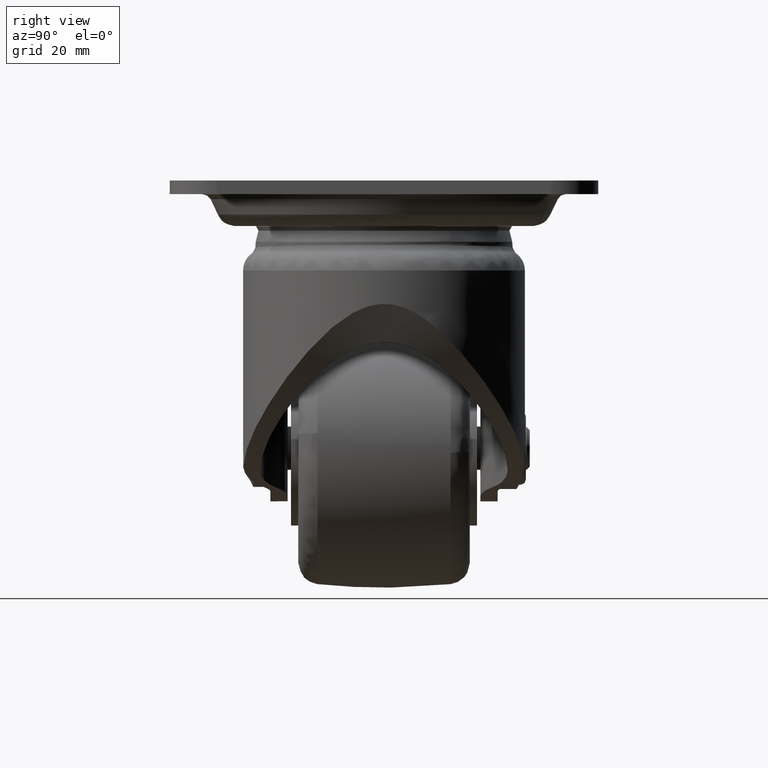
[diagram: clean part render]
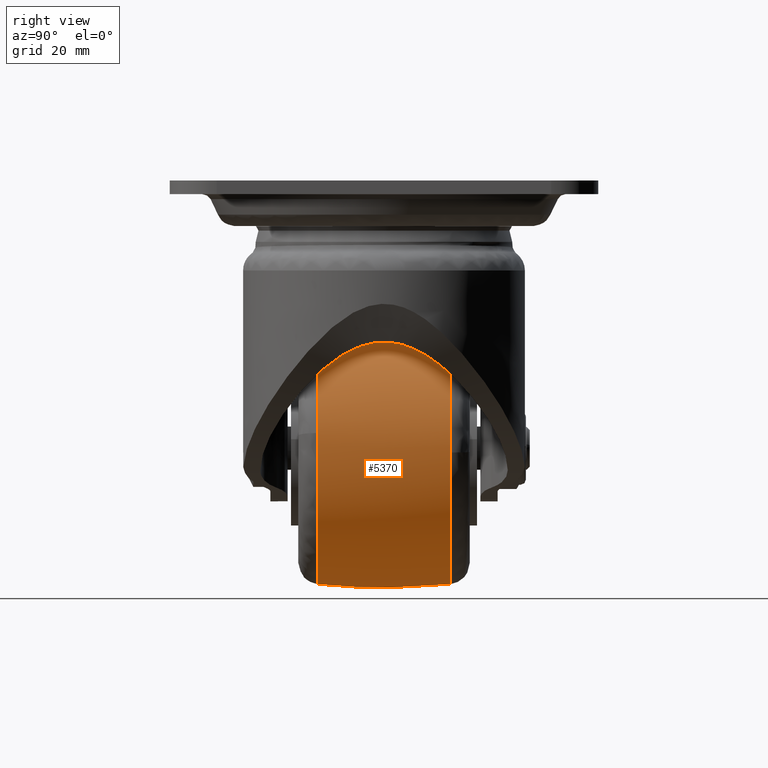
[diagram: same view with one face highlighted and labeled with its STEP entity id]
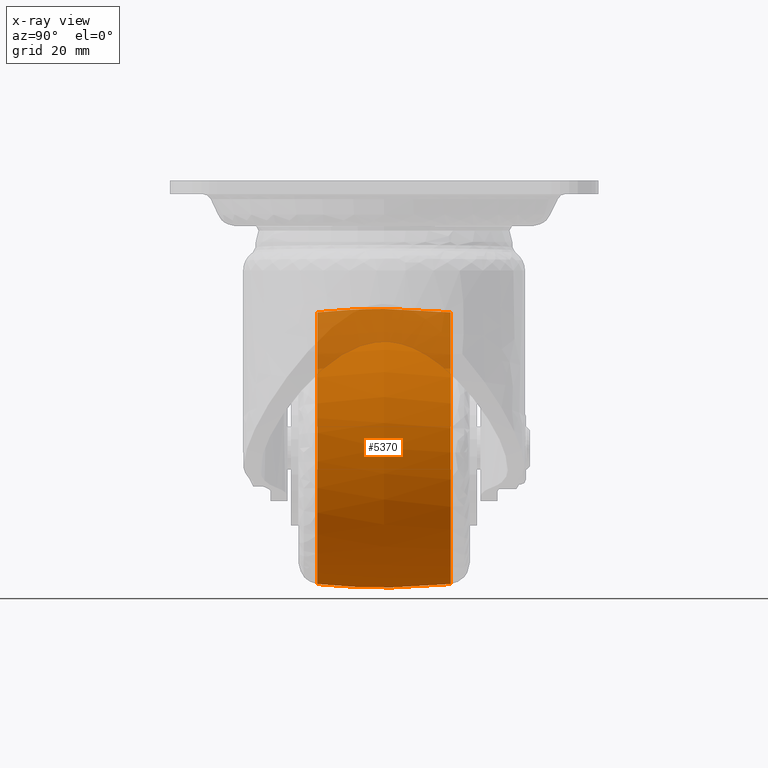
[diagram: x-ray of the same camera — body ghosted, the highlighted face saturated]
A machine part, right view. The second image highlights one B-rep face of the part: STEP entity #5370.
The next image is the same camera in x-ray: the body ghosted, the highlighted face saturated — about 15% of this face is hidden behind the body in this view.
In plain terms, the highlighted face is a freeform B-spline surface patch.
Its self-contained STEP definition (entity closure, byte-faithful):
#4887=CARTESIAN_POINT('',(31.680247499037272,15.517244009506101,-58.474191717085397));
#4888=VERTEX_POINT('',#4887);
#4902=CARTESIAN_POINT('',(0.0,15.517246504561850,-89.195224658554821));
#4903=VERTEX_POINT('',#4902);
#4904=CARTESIAN_POINT('',(31.680247499037272,15.517244009506101,-58.474191717085404));
#4905=CARTESIAN_POINT('',(30.735553415809747,15.517246369523312,-89.195224618590757));
#4906=CARTESIAN_POINT('',(0.0,15.517246504561850,-89.195224658554821));
#4914=(BOUNDED_CURVE()B_SPLINE_CURVE(2,(#4904,#4905,#4906),.UNSPECIFIED.,.F.,.U.)B_SPLINE_CURVE_WITH_KNOTS((3,3),(0.255400349746109,0.500000000000000),.UNSPECIFIED.)CURVE()GEOMETRIC_REPRESENTATION_ITEM()RATIONAL_B_SPLINE_CURVE((0.987619533365299,0.713433684465973,1.0))REPRESENTATION_ITEM(''));
#4915=EDGE_CURVE('',#4888,#4903,#4914,.T.);
#4917=CARTESIAN_POINT('',(-31.483239876195750,15.517261947292409,-61.159613536615502));
#4918=VERTEX_POINT('',#4917);
#4932=CARTESIAN_POINT('',(-31.572674686781909,15.517259676174930,-54.715536927895030));
#4933=VERTEX_POINT('',#4932);
#4934=CARTESIAN_POINT('',(-31.483239876195750,15.517261947292416,-61.159613536615495));
#4935=CARTESIAN_POINT('',(-31.695222413460527,15.517261356999258,-59.335946281443555));
#4936=CARTESIAN_POINT('',(-31.695221763569791,15.517260702790811,-57.499999897470772));
#4937=CARTESIAN_POINT('',(-31.695221269791279,15.517260205731754,-56.105071744509551));
#4938=CARTESIAN_POINT('',(-31.572674686781912,15.517259676174929,-54.715536927895030));
#4946=(BOUNDED_CURVE()B_SPLINE_CURVE(2,(#4934,#4935,#4936,#4937,#4938),.UNSPECIFIED.,.F.,.U.)B_SPLINE_CURVE_WITH_KNOTS((3,2,3),(0.730000273836047,0.750000000000000,0.765281543100276),.UNSPECIFIED.)CURVE()GEOMETRIC_REPRESENTATION_ITEM()RATIONAL_B_SPLINE_CURVE((0.956886657167089,0.976568863313808,1.0,0.982096558611695,0.966381854913138))REPRESENTATION_ITEM(''));
#4947=EDGE_CURVE('',#4918,#4933,#4946,.T.);
#5036=CARTESIAN_POINT('',(0.0,15.517241913492301,-25.804774863944900));
#5037=VERTEX_POINT('',#5036);
#5038=CARTESIAN_POINT('',(-31.572674686781912,15.517259676174929,-54.715536927895030));
#5039=CARTESIAN_POINT('',(-29.022974110090242,15.517249951565887,-25.804774875741433));
#5040=CARTESIAN_POINT('',(0.0,15.517241913492301,-25.804774863944900));
#5048=(BOUNDED_CURVE()B_SPLINE_CURVE(2,(#5038,#5039,#5040),.UNSPECIFIED.,.F.,.U.)B_SPLINE_CURVE_WITH_KNOTS((3,3),(0.765281543100276,1.0),.UNSPECIFIED.)CURVE()GEOMETRIC_REPRESENTATION_ITEM()RATIONAL_B_SPLINE_CURVE((0.966381854913138,0.725010222574853,1.0))REPRESENTATION_ITEM(''));
#5049=EDGE_CURVE('',#4933,#5037,#5048,.T.);
#5051=CARTESIAN_POINT('',(0.0,15.517241913492301,-25.804774863944900));
#5052=CARTESIAN_POINT('',(31.695223875792891,15.517241782542470,-25.804774825190872));
#5053=CARTESIAN_POINT('',(31.695222576180960,15.517243943038700,-57.499999682531772));
#5054=CARTESIAN_POINT('',(31.695222556203646,15.517243976249317,-57.987210796076674));
#5055=CARTESIAN_POINT('',(31.680247499037272,15.517244009506101,-58.474191717085404));
#5063=(BOUNDED_CURVE()B_SPLINE_CURVE(2,(#5051,#5052,#5053,#5054,#5055),.UNSPECIFIED.,.F.,.U.)B_SPLINE_CURVE_WITH_KNOTS((3,2,3),(0.0,0.250000000000000,0.255400349746109),.UNSPECIFIED.)CURVE()GEOMETRIC_REPRESENTATION_ITEM()RATIONAL_B_SPLINE_CURVE((1.0,0.707106781186547,1.0,0.993673096720574,0.987619533365299))REPRESENTATION_ITEM(''));
#5064=EDGE_CURVE('',#5037,#4888,#5063,.T.);
#5105=CARTESIAN_POINT('',(12.672070466203101,-15.517241533278950,-86.551775262199044));
#5106=VERTEX_POINT('',#5105);
#5107=CARTESIAN_POINT('',(0.0,-15.517241598101750,-89.195221404938138));
#5108=VERTEX_POINT('',#5107);
#5109=CARTESIAN_POINT('',(12.672070466203104,-15.517241533278947,-86.551775262199044));
#5110=CARTESIAN_POINT('',(6.611752104160352,-15.517241598101755,-89.195221404938152));
#5111=CARTESIAN_POINT('',(0.0,-15.517241598101750,-89.195221404938138));
#5119=(BOUNDED_CURVE()B_SPLINE_CURVE(2,(#5109,#5110,#5111),.UNSPECIFIED.,.F.,.U.)B_SPLINE_CURVE_WITH_KNOTS((3,3),(0.432113192534847,0.500000000000000),.UNSPECIFIED.)CURVE()GEOMETRIC_REPRESENTATION_ITEM()RATIONAL_B_SPLINE_CURVE((0.884125976186357,0.920465657786248,1.0))REPRESENTATION_ITEM(''));
#5120=EDGE_CURVE('',#5106,#5108,#5119,.T.);
#5184=CARTESIAN_POINT('',(31.492729215936670,-15.517241489145871,-53.922992037711040));
#5185=VERTEX_POINT('',#5184);
#5199=CARTESIAN_POINT('',(0.0,-15.517241397116351,-25.804779828797962));
#5200=VERTEX_POINT('',#5199);
#5201=CARTESIAN_POINT('',(0.0,-15.517241397116351,-25.804779828797962));
#5202=CARTESIAN_POINT('',(28.299005276654444,-15.517241397116353,-25.804779828797944));
#5203=CARTESIAN_POINT('',(31.492729215936670,-15.517241489145874,-53.922992037711040));
#5211=(BOUNDED_CURVE()B_SPLINE_CURVE(2,(#5201,#5202,#5203),.UNSPECIFIED.,.F.,.U.)B_SPLINE_CURVE_WITH_KNOTS((3,3),(0.0,0.230444233651579),.UNSPECIFIED.)CURVE()GEOMETRIC_REPRESENTATION_ITEM()RATIONAL_B_SPLINE_CURVE((1.0,0.730017786595159,0.957762327331403))REPRESENTATION_ITEM(''));
#5212=EDGE_CURVE('',#5200,#5185,#5211,.T.);
#5214=CARTESIAN_POINT('',(-31.483237938265621,-15.517256669648710,-61.159613230009029));
#5215=VERTEX_POINT('',#5214);
#5216=CARTESIAN_POINT('',(-31.483237938265628,-15.517256669648713,-61.159613230009029));
#5217=CARTESIAN_POINT('',(-31.695221062251296,-15.517256275756123,-59.335946228994970));
#5218=CARTESIAN_POINT('',(-31.695221035761062,-15.517255833425290,-57.500000100496379));
#5219=CARTESIAN_POINT('',(-31.695220578441766,-15.517248197159114,-25.804779876135512));
#5220=CARTESIAN_POINT('',(0.0,-15.517241397116351,-25.804779828797962));
#5228=(BOUNDED_CURVE()B_SPLINE_CURVE(2,(#5216,#5217,#5218,#5219,#5220),.UNSPECIFIED.,.F.,.U.)B_SPLINE_CURVE_WITH_KNOTS((3,2,3),(0.730000274267257,0.750000000000000,1.0),.UNSPECIFIED.)CURVE()GEOMETRIC_REPRESENTATION_ITEM()RATIONAL_B_SPLINE_CURVE((0.956886658015817,0.976568863819002,1.0,0.707106781186548,1.0))REPRESENTATION_ITEM(''));
#5229=EDGE_CURVE('',#5215,#5200,#5228,.T.);
#5264=CARTESIAN_POINT('',(31.492729215936670,-15.517241489145874,-53.922992037711040));
#5265=CARTESIAN_POINT('',(31.695220171202056,-15.517241491920261,-55.705764919634554));
#5266=CARTESIAN_POINT('',(31.695220171202049,-15.517241497609049,-57.500000616868050));
#5267=CARTESIAN_POINT('',(31.695220171202049,-15.517241563411837,-78.254083001675156));
#5268=CARTESIAN_POINT('',(12.672070466203104,-15.517241533278947,-86.551775262199044));
#5276=(BOUNDED_CURVE()B_SPLINE_CURVE(2,(#5264,#5265,#5266,#5267,#5268),.UNSPECIFIED.,.F.,.U.)B_SPLINE_CURVE_WITH_KNOTS((3,2,3),(0.230444233651579,0.250000000000000,0.432113192534847),.UNSPECIFIED.)CURVE()GEOMETRIC_REPRESENTATION_ITEM()RATIONAL_B_SPLINE_CURVE((0.957762327331403,0.977088994591389,1.0,0.786641123400299,0.884125976186357))REPRESENTATION_ITEM(''));
#5277=EDGE_CURVE('',#5185,#5106,#5276,.T.);
#5299=CARTESIAN_POINT('',(-31.316080830594672,17.057838752804333,-61.140233557958126));
#5300=CARTESIAN_POINT('',(-33.255486134399156,0.000006253118764,-61.365673270787511));
#5301=CARTESIAN_POINT('',(-31.316082234113768,-17.057826408297270,-61.140233721105538));
#5302=CARTESIAN_POINT('',(-31.526944332504282,17.057838752804329,-59.326223999261714));
#5303=CARTESIAN_POINT('',(-33.479408415796364,0.000006253118765,-59.439322075910027));
#5304=CARTESIAN_POINT('',(-31.526945745473832,-17.057826408297274,-59.326224081109125));
#5305=CARTESIAN_POINT('',(-31.526944332504272,17.057838752804336,-57.500000000000007));
#5306=CARTESIAN_POINT('',(-33.479408415796350,0.000006253118766,-57.500000000000000));
#5307=CARTESIAN_POINT('',(-31.526945745473824,-17.057826408297274,-57.499999999999986));
#5308=CARTESIAN_POINT('',(-31.526944332504289,17.057838752804329,-25.973055667495718));
#5309=CARTESIAN_POINT('',(-33.479408415796357,0.000006253118766,-24.020591584203633));
#5310=CARTESIAN_POINT('',(-31.526945745473824,-17.057826408297281,-25.973054254526165));
#5311=CARTESIAN_POINT('',(0.0,17.057838752804336,-25.973055667495728));
#5312=CARTESIAN_POINT('',(0.0,0.000006253118766,-24.020591584203654));
#5313=CARTESIAN_POINT('',(0.0,-17.057826408297274,-25.973054254526183));
#5314=CARTESIAN_POINT('',(31.526944332504272,17.057838752804329,-25.973055667495707));
#5315=CARTESIAN_POINT('',(33.479408415796357,0.000006253118766,-24.020591584203633));
#5316=CARTESIAN_POINT('',(31.526945745473824,-17.057826408297281,-25.973054254526165));
#5317=CARTESIAN_POINT('',(31.526944332504272,17.057838752804336,-57.500000000000007));
#5318=CARTESIAN_POINT('',(33.479408415796350,0.000006253118766,-57.500000000000000));
#5319=CARTESIAN_POINT('',(31.526945745473824,-17.057826408297274,-57.499999999999986));
#5320=CARTESIAN_POINT('',(31.526944332504289,17.057838752804329,-89.026944332504272));
#5321=CARTESIAN_POINT('',(33.479408415796357,0.000006253118766,-90.979408415796343));
#5322=CARTESIAN_POINT('',(31.526945745473824,-17.057826408297281,-89.026945745473824));
#5323=CARTESIAN_POINT('',(0.0,17.057838752804336,-89.026944332504272));
#5324=CARTESIAN_POINT('',(0.0,0.000006253118766,-90.979408415796357));
#5325=CARTESIAN_POINT('',(0.0,-17.057826408297274,-89.026945745473824));
#5333=(BOUNDED_SURFACE()B_SPLINE_SURFACE(2,2,((#5299,#5302,#5305,#5308,#5311,#5314,#5317,#5320,#5323),(#5300,#5303,#5306,#5309,#5312,#5315,#5318,#5321,#5324),(#5301,#5304,#5307,#5310,#5313,#5316,#5319,#5322,#5325)),.UNSPECIFIED.,.F.,.F.,.U.)B_SPLINE_SURFACE_WITH_KNOTS((3,3),(3,2,2,2,3),(0.0,34.226679963559867),(0.0,4.307820149998674,58.155583258500862,112.003346367003100,165.851109475505210),.UNSPECIFIED.)GEOMETRIC_REPRESENTATION_ITEM()RATIONAL_B_SPLINE_SURFACE(((0.855999914603439,0.873607182817957,0.894568215573752,0.632555251466149,0.894568215573752,0.632555251466149,0.894568215573752,0.632555251466149,0.894568215573752),(0.850447012837298,0.867940062079246,0.888765119873100,0.628451843144344,0.888765119873100,0.628451843144344,0.888765119873100,0.628451843144344,0.888765119873100),(0.855999910558647,0.873607178689967,0.894568211346716,0.632555248477184,0.894568211346716,0.632555248477184,0.894568211346716,0.632555248477184,0.894568211346716)))REPRESENTATION_ITEM('')SURFACE());
#5334=ORIENTED_EDGE('',*,*,#5049,.F.);
#5335=ORIENTED_EDGE('',*,*,#4947,.F.);
#5336=CARTESIAN_POINT('',(-31.483239876195753,15.517261947292406,-61.159613536615502));
#5337=CARTESIAN_POINT('',(-33.086339032080382,0.000002665970412,-61.345960460324577));
#5338=CARTESIAN_POINT('',(-31.483237938265624,-15.517256669648710,-61.159613230009029));
#5346=(BOUNDED_CURVE()B_SPLINE_CURVE(2,(#5336,#5337,#5338),.UNSPECIFIED.,.F.,.U.)B_SPLINE_CURVE_WITH_KNOTS((3,3),(0.425603817134385,0.574396158670454),.UNSPECIFIED.)CURVE()GEOMETRIC_REPRESENTATION_ITEM()RATIONAL_B_SPLINE_CURVE((0.855518460504172,0.850928451015554,0.855518459011407))REPRESENTATION_ITEM(''));
#5347=EDGE_CURVE('',#4918,#5215,#5346,.T.);
#5348=ORIENTED_EDGE('',*,*,#5347,.T.);
#5349=ORIENTED_EDGE('',*,*,#5229,.T.);
#5350=ORIENTED_EDGE('',*,*,#5212,.T.);
#5351=ORIENTED_EDGE('',*,*,#5277,.T.);
#5352=ORIENTED_EDGE('',*,*,#5120,.T.);
#5353=CARTESIAN_POINT('',(0.0,15.517246504561852,-89.195224658554821));
#5354=CARTESIAN_POINT('',(0.0,0.000002477672730,-90.809114288185242));
#5355=CARTESIAN_POINT('',(0.0,-15.517241598101757,-89.195221404938138));
#5363=(BOUNDED_CURVE()B_SPLINE_CURVE(2,(#5353,#5354,#5355),.UNSPECIFIED.,.F.,.U.)B_SPLINE_CURVE_WITH_KNOTS((3,3),(0.425603891572650,0.574396086643665),.UNSPECIFIED.)CURVE()GEOMETRIC_REPRESENTATION_ITEM()RATIONAL_B_SPLINE_CURVE((0.894065071744625,0.889268262290978,0.894065070340086))REPRESENTATION_ITEM(''));
#5364=EDGE_CURVE('',#4903,#5108,#5363,.T.);
#5365=ORIENTED_EDGE('',*,*,#5364,.F.);
#5366=ORIENTED_EDGE('',*,*,#4915,.F.);
#5367=ORIENTED_EDGE('',*,*,#5064,.F.);
#5368=EDGE_LOOP('',(#5334,#5335,#5348,#5349,#5350,#5351,#5352,#5365,#5366,#5367));
#5369=FACE_OUTER_BOUND('',#5368,.T.);
#5370=ADVANCED_FACE('',(#5369),#5333,.T.);